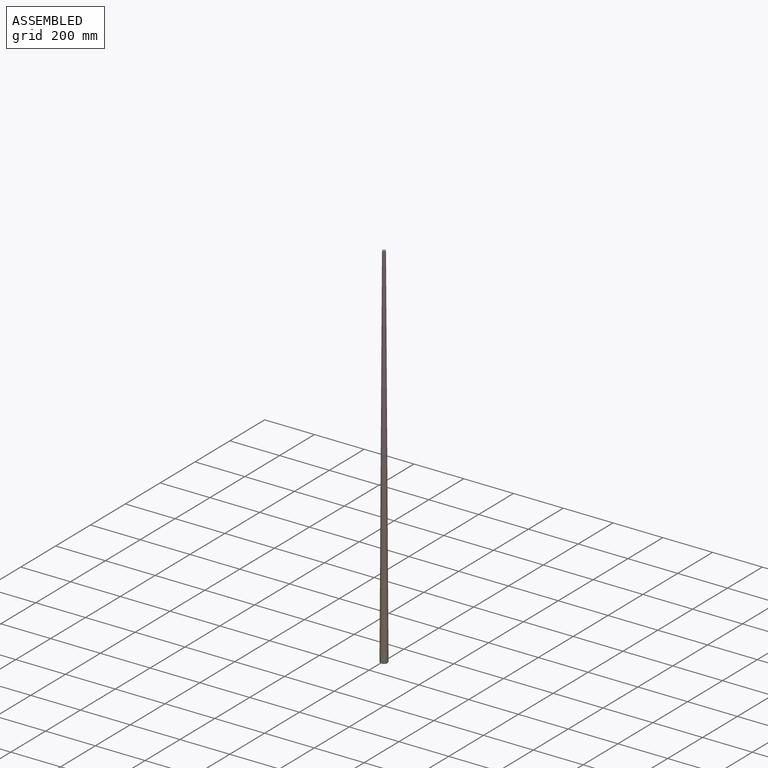
[diagram: assembled view]
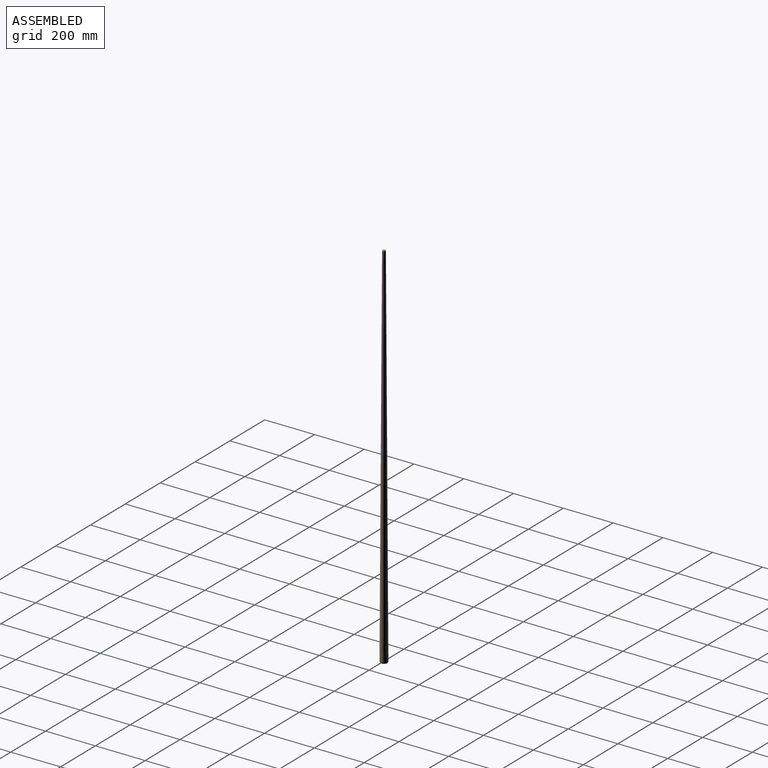
[diagram: assembled view, second angle]
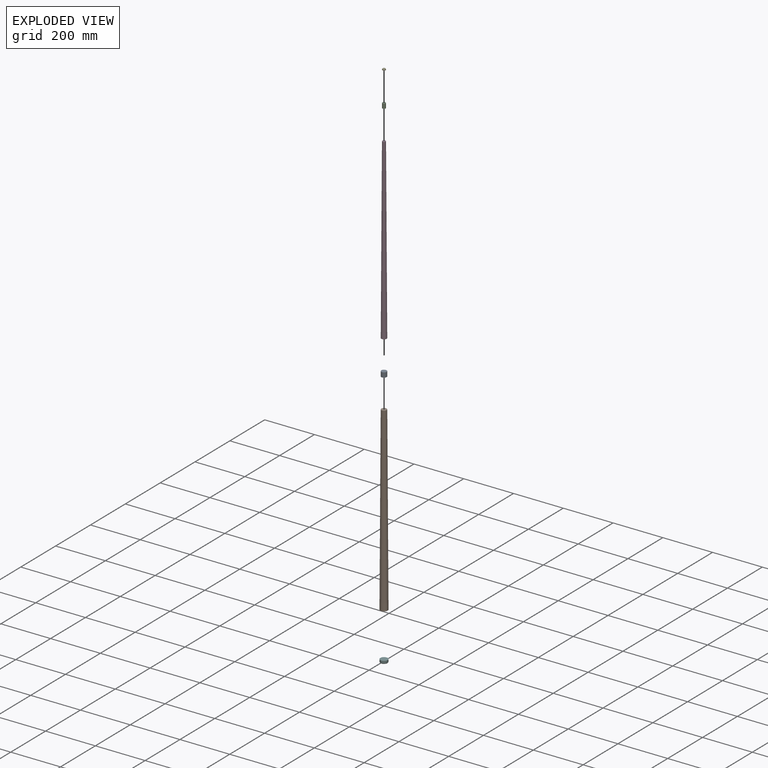
[diagram: exploded view]
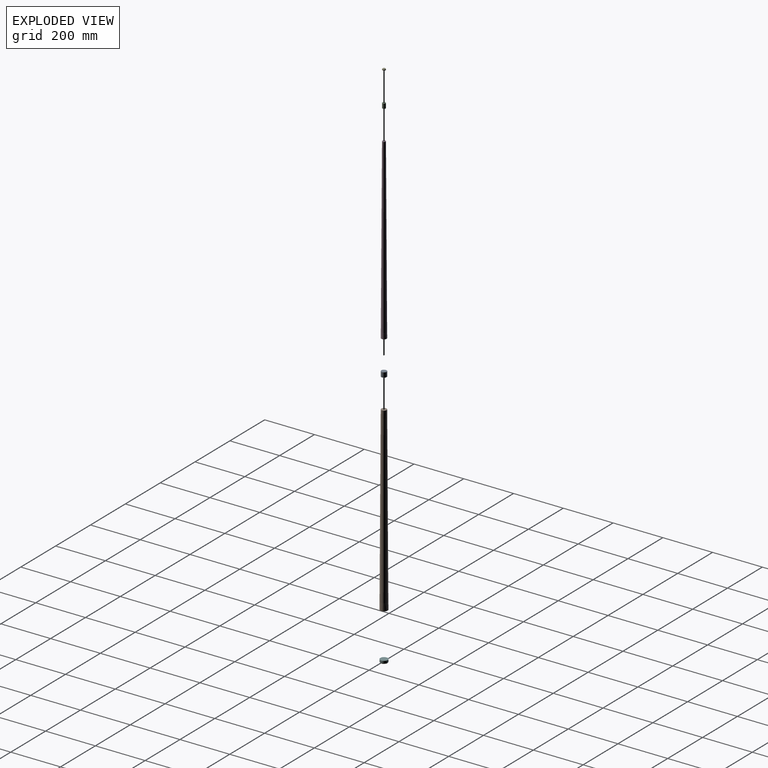
[diagram: exploded view, second angle]
ASSEMBLY  parts=6 mates=5
PART A: 3 faces, bbox 21.6x21.6x19.1 mm
  f0: plane 21.61x21.61mm, normal (0,0,-1), area 366.7mm2, adj f1
  f1: cone r=6.5mm half-angle=0.3deg, axis (0,0,-1), area 1286.7mm2, adj f0,f2
  f2: plane 21.39x21.39mm, normal (0,0,1), area 359.4mm2, adj f1
PART B: 3 faces, bbox 29.9x29.9x727.1 mm
  f0: cone r=6.5mm half-angle=0.3deg, axis (0,0,-1), area 58777.3mm2, adj f1,f2
  f1: plane 21.61x21.61mm, normal (0,0,1), area 366.7mm2, adj f0
  f2: plane 29.86x29.86mm, normal (0,0,-1), area 700.1mm2, adj f0
PART C: 3 faces, bbox 13.3x13.3x19.1 mm
  f0: cone r=6.5mm half-angle=0.3deg, axis (0,0,-1), area 787.9mm2, adj f1,f2
  f1: plane 13.06x13.06mm, normal (0,0,1), area 133.9mm2, adj f0
  f2: plane 13.27x13.27mm, normal (0,0,-1), area 138.4mm2, adj f0
PART D: 3 faces, bbox 21.4x21.4x715.6 mm
  f0: plane 21.39x21.39mm, normal (0,0,-1), area 359.4mm2, adj f1
  f1: cone r=6.5mm half-angle=0.3deg, axis (0,0,-1), area 38969.4mm2, adj f0,f2
  f2: plane 13.27x13.27mm, normal (0,0,1), area 138.4mm2, adj f1
PART E: 4 faces, bbox 14.1x14.1x5.1 mm
  f0: plane 6.69x6.69mm, normal (0,0,1), area 35.1mm2, adj f3
  f1: cone r=6.5mm half-angle=0.3deg, axis (0,0,-1), area 78.8mm2, adj f2,f3
  f2: plane 13.06x13.06mm, normal (0,0,-1), area 133.9mm2, adj f1
  f3: torus R=3.34mm, axis (0,0,1), area 167.4mm2, adj f0,f1
PART F: 4 faces, bbox 32.5x32.5x12.7 mm
  f0: cylinder r=15mm len=30mm, axis (0,0,-1), area 718.2mm2, adj f1,f3
  f1: plane 30x30mm, normal (0,0,1), area 706.9mm2, adj f0
  f2: plane 19.84x19.84mm, normal (0,0,-1), area 309.2mm2, adj f3
  f3: torus R=9.92mm, axis (0,0,1), area 659.5mm2, adj f0,f2
PLACE A at identity
PLACE B at identity
PLACE C at identity
PLACE D at identity
PLACE E at identity
PLACE F at identity
MATE fastened D.f1 <-> C.f0  axis (0,0,1) through (0,0,725.17)mm
MATE fastened E.f1 <-> C.f0  axis (0,0,-1) through (0,0,744.22)mm
MATE fastened F.f0 <-> B.f0  axis (0,0,1) through (0,0,-736.6)mm
MATE fastened D.f1 <-> A.f1  axis (0,0,-1) through (0,0,9.53)mm
MATE fastened A.f1 <-> B.f0  axis (0,0,-1) through (0,0,-9.53)mm
